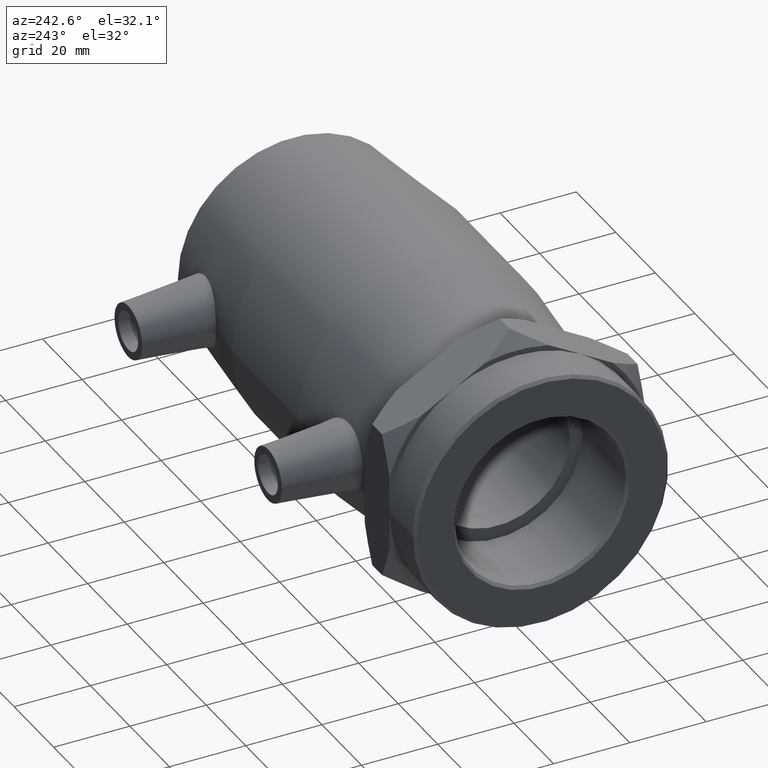
[diagram: clean part render]
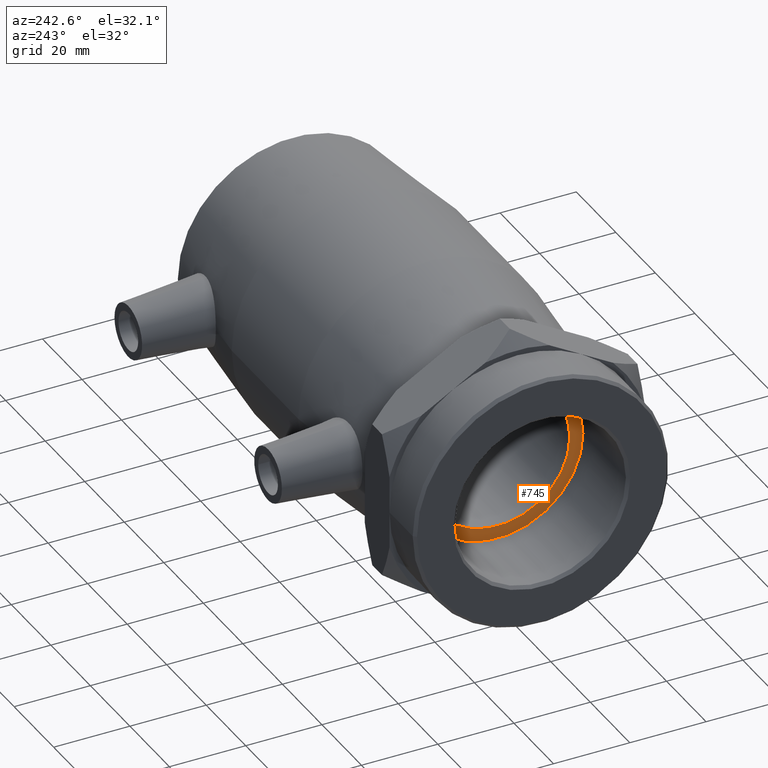
[diagram: same view with one face highlighted and labeled with its STEP entity id]
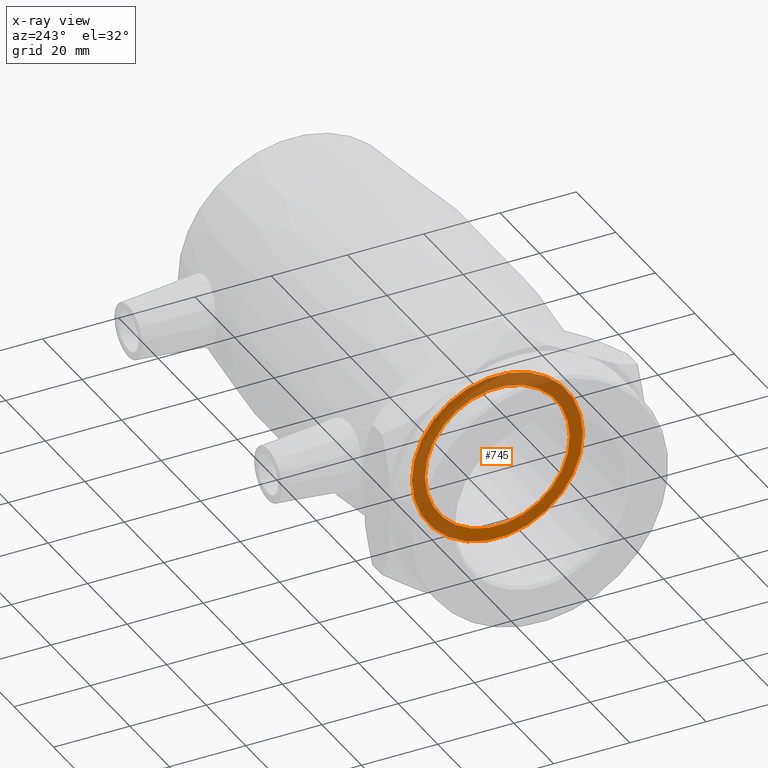
[diagram: x-ray of the same camera — body ghosted, the highlighted face saturated]
A machine part, auxiliary view. The second image highlights one B-rep face of the part: STEP entity #745.
The next image is the same camera in x-ray: the body ghosted, the highlighted face saturated — about 52% of this face is hidden behind the body in this view.
In plain terms, the highlighted planar face has unit normal (-1, 0, 0).
Its self-contained STEP definition (entity closure, byte-faithful):
#113=PLANE('',#830);
#132=FACE_BOUND('',#250,.T.);
#186=FACE_OUTER_BOUND('',#249,.T.);
#249=EDGE_LOOP('',(#639));
#250=EDGE_LOOP('',(#640));
#298=CIRCLE('',#781,22.4225);
#319=CIRCLE('',#829,19.);
#343=VERTEX_POINT('',#1112);
#388=VERTEX_POINT('',#1301);
#414=EDGE_CURVE('',#343,#343,#298,.T.);
#483=EDGE_CURVE('',#388,#388,#319,.T.);
#639=ORIENTED_EDGE('',*,*,#414,.F.);
#640=ORIENTED_EDGE('',*,*,#483,.T.);
#745=ADVANCED_FACE('',(#186,#132),#113,.T.);
#781=AXIS2_PLACEMENT_3D('',#1113,#895,#896);
#829=AXIS2_PLACEMENT_3D('',#1302,#1015,#1016);
#830=AXIS2_PLACEMENT_3D('',#1303,#1017,#1018);
#895=DIRECTION('center_axis',(1.,0.,0.));
#896=DIRECTION('ref_axis',(0.,0.,-1.));
#1015=DIRECTION('center_axis',(1.,0.,0.));
#1016=DIRECTION('ref_axis',(0.,0.,-1.));
#1017=DIRECTION('center_axis',(-1.,0.,0.));
#1018=DIRECTION('ref_axis',(0.,0.,1.));
#1112=CARTESIAN_POINT('',(-53.,22.4225,0.));
#1113=CARTESIAN_POINT('Origin',(-53.,0.,0.));
#1301=CARTESIAN_POINT('',(-53.,19.,0.));
#1302=CARTESIAN_POINT('Origin',(-53.,0.,0.));
#1303=CARTESIAN_POINT('Origin',(-53.,22.4225,0.));